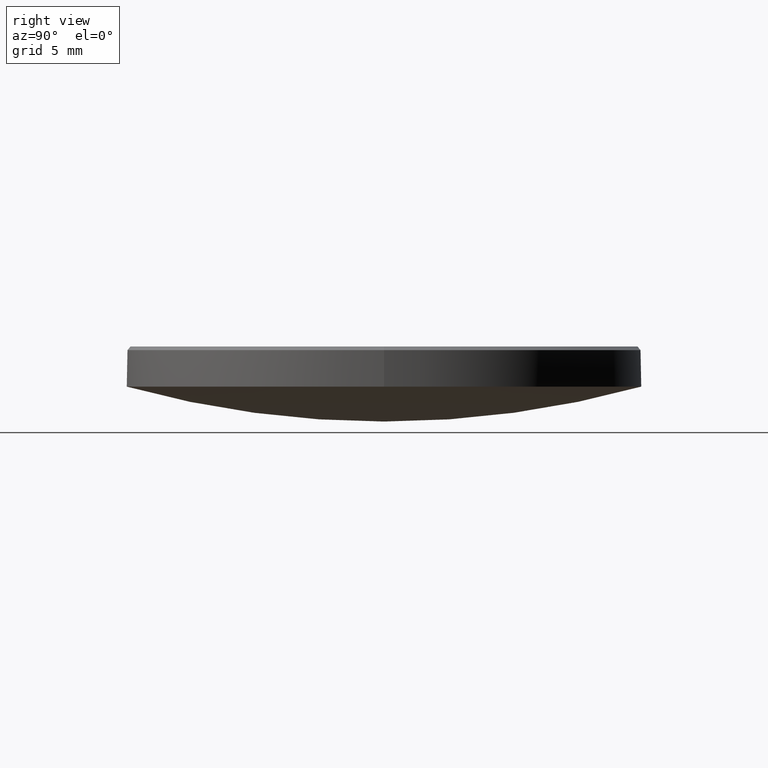
[diagram: clean part render]
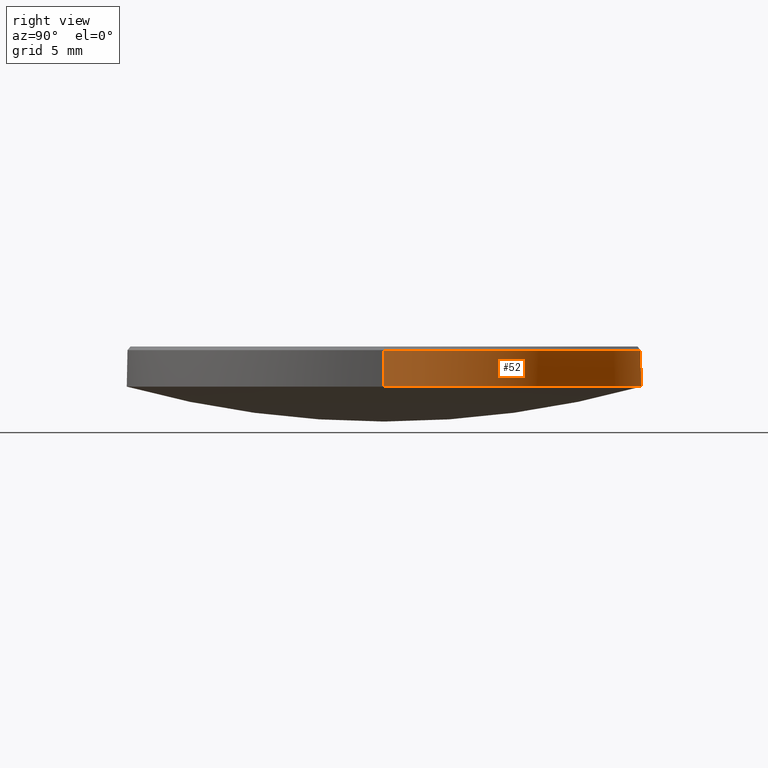
[diagram: same view with one face highlighted and labeled with its STEP entity id]
A machine part, right view. The second image highlights one B-rep face of the part: STEP entity #52.
In plain terms, the highlighted cylindrical surface (partial cylindrical patch) has radius 12.7 mm, axis along (-0, -0, -1).
Its self-contained STEP definition (entity closure, byte-faithful):
#8 = EDGE_CURVE ( 'NONE', #170, #14, #28, .T. ) ;
#13 = ORIENTED_EDGE ( 'NONE', *, *, #8, .T. ) ;
#14 = VERTEX_POINT ( 'NONE', #148 ) ;
#21 = VERTEX_POINT ( 'NONE', #63 ) ;
#28 = CIRCLE ( 'NONE', #55, 12.69999999999999929 ) ;
#38 = CIRCLE ( 'NONE', #205, 12.69999999999999929 ) ;
#47 = CARTESIAN_POINT ( 'NONE',  ( -12.69999999999999929, 0.000000000000000000, 10.00000000000000000 ) ) ;
#52 = ADVANCED_FACE ( 'NONE', ( #168 ), #151, .T. ) ;
#55 = AXIS2_PLACEMENT_3D ( 'NONE', #89, #135, #83 ) ;
#56 = EDGE_CURVE ( 'NONE', #229, #274, #38, .T. ) ;
#59 = LINE ( 'NONE', #47, #165 ) ;
#63 = CARTESIAN_POINT ( 'NONE',  ( 12.69999999999999929, 1.555301434917138433E-15, 4.000000000000000000 ) ) ;
#69 = CARTESIAN_POINT ( 'NONE',  ( 0.000000000000000000, 12.70000000000000284, 4.000000000000001776 ) ) ;
#79 = DIRECTION ( 'NONE',  ( 0.000000000000000000, 0.000000000000000000, -1.000000000000000000 ) ) ;
#83 = DIRECTION ( 'NONE',  ( 1.000000000000000000, 0.000000000000000000, 0.000000000000000000 ) ) ;
#88 = EDGE_LOOP ( 'NONE', ( #152, #105, #233, #13, #191 ) ) ;
#89 = CARTESIAN_POINT ( 'NONE',  ( 0.000000000000000000, 0.000000000000000000, 4.000000000000000000 ) ) ;
#90 = AXIS2_PLACEMENT_3D ( 'NONE', #206, #282, #237 ) ;
#105 = ORIENTED_EDGE ( 'NONE', *, *, #169, .T. ) ;
#117 = DIRECTION ( 'NONE',  ( -0.000000000000000000, -0.000000000000000000, -1.000000000000000000 ) ) ;
#118 = DIRECTION ( 'NONE',  ( -0.000000000000000000, -0.000000000000000000, -1.000000000000000000 ) ) ;
#127 = EDGE_CURVE ( 'NONE', #21, #170, #223, .T. ) ;
#135 = DIRECTION ( 'NONE',  ( -0.000000000000000000, -0.000000000000000000, 1.000000000000000000 ) ) ;
#139 = LINE ( 'NONE', #264, #263 ) ;
#143 = CARTESIAN_POINT ( 'NONE',  ( 0.000000000000000000, 0.000000000000000000, 4.000000000000000000 ) ) ;
#148 = CARTESIAN_POINT ( 'NONE',  ( -12.69999999999999929, 0.000000000000000000, 4.000000000000000000 ) ) ;
#151 = CYLINDRICAL_SURFACE ( 'NONE', #90, 12.69999999999999929 ) ;
#152 = ORIENTED_EDGE ( 'NONE', *, *, #56, .T. ) ;
#165 = VECTOR ( 'NONE', #117, 1000.000000000000000 ) ;
#166 = DIRECTION ( 'NONE',  ( 1.000000000000000000, 0.000000000000000000, 0.000000000000000000 ) ) ;
#168 = FACE_OUTER_BOUND ( 'NONE', #88, .T. ) ;
#169 = EDGE_CURVE ( 'NONE', #274, #21, #139, .T. ) ;
#170 = VERTEX_POINT ( 'NONE', #69 ) ;
#173 = CARTESIAN_POINT ( 'NONE',  ( -12.69999999999999929, 0.000000000000000000, 5.799999999999999822 ) ) ;
#186 = AXIS2_PLACEMENT_3D ( 'NONE', #143, #272, #198 ) ;
#191 = ORIENTED_EDGE ( 'NONE', *, *, #235, .F. ) ;
#198 = DIRECTION ( 'NONE',  ( 1.000000000000000000, 0.000000000000000000, 0.000000000000000000 ) ) ;
#205 = AXIS2_PLACEMENT_3D ( 'NONE', #277, #79, #166 ) ;
#206 = CARTESIAN_POINT ( 'NONE',  ( 0.000000000000000000, 0.000000000000000000, 10.00000000000000000 ) ) ;
#223 = CIRCLE ( 'NONE', #186, 12.69999999999999929 ) ;
#229 = VERTEX_POINT ( 'NONE', #173 ) ;
#233 = ORIENTED_EDGE ( 'NONE', *, *, #127, .T. ) ;
#235 = EDGE_CURVE ( 'NONE', #229, #14, #59, .T. ) ;
#237 = DIRECTION ( 'NONE',  ( -1.000000000000000000, 0.000000000000000000, 0.000000000000000000 ) ) ;
#260 = CARTESIAN_POINT ( 'NONE',  ( 12.69999999999999929, 1.555301434917138433E-15, 5.799999999999999822 ) ) ;
#263 = VECTOR ( 'NONE', #118, 1000.000000000000000 ) ;
#264 = CARTESIAN_POINT ( 'NONE',  ( 12.69999999999999929, 1.555301434917138433E-15, 10.00000000000000000 ) ) ;
#272 = DIRECTION ( 'NONE',  ( -0.000000000000000000, -0.000000000000000000, 1.000000000000000000 ) ) ;
#274 = VERTEX_POINT ( 'NONE', #260 ) ;
#277 = CARTESIAN_POINT ( 'NONE',  ( 0.000000000000000000, 0.000000000000000000, 5.799999999999999822 ) ) ;
#282 = DIRECTION ( 'NONE',  ( -0.000000000000000000, -0.000000000000000000, -1.000000000000000000 ) ) ;